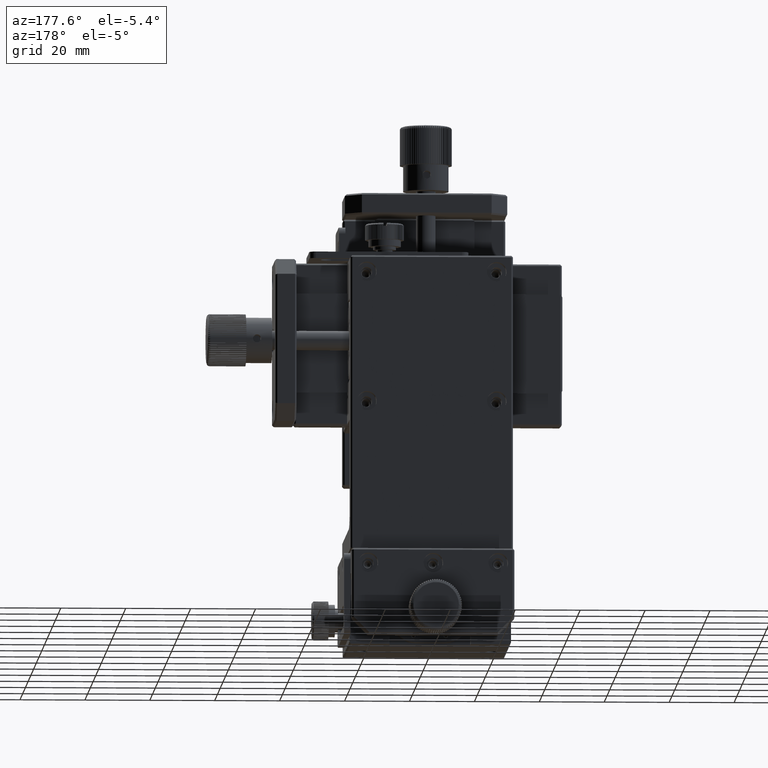
[diagram: clean part render]
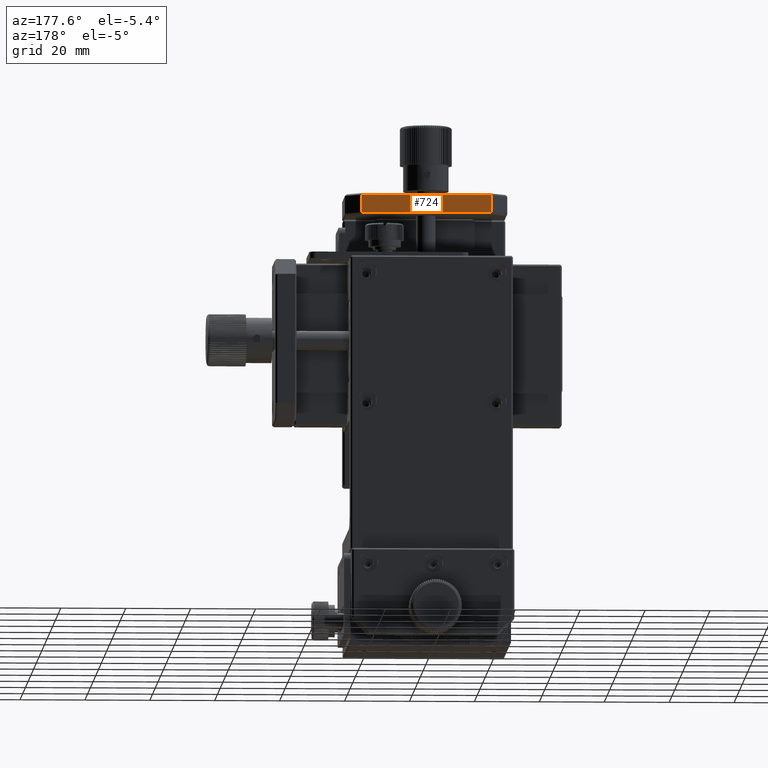
[diagram: same view with one face highlighted and labeled with its STEP entity id]
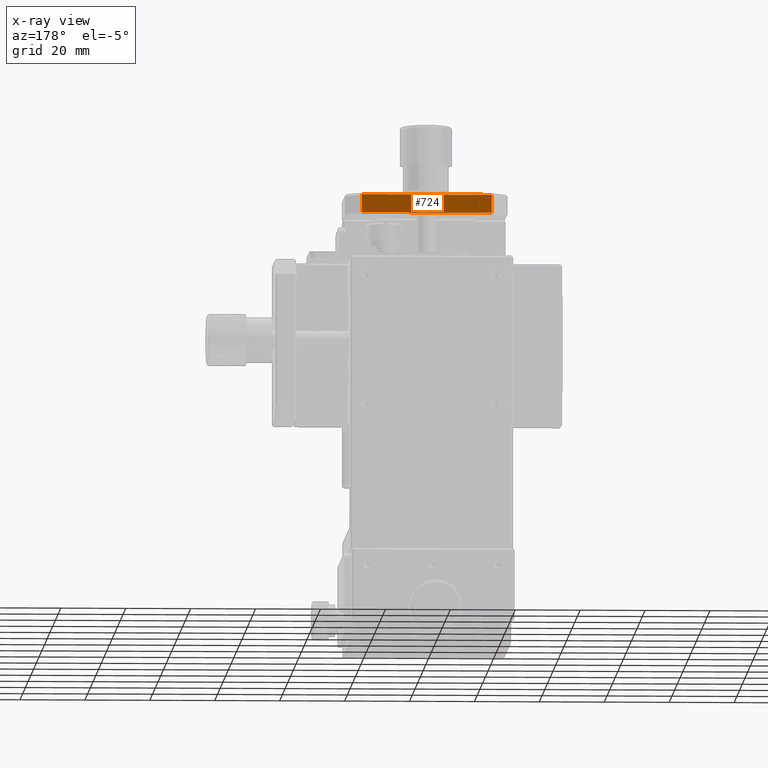
[diagram: x-ray of the same camera — body ghosted, the highlighted face saturated]
A machine part, auxiliary view. The second image highlights one B-rep face of the part: STEP entity #724.
The next image is the same camera in x-ray: the body ghosted, the highlighted face saturated — about 0% of this face is hidden behind the body in this view.
In plain terms, the highlighted planar face has unit normal (0, -1, 0).
Its self-contained STEP definition (entity closure, byte-faithful):
#150 = VECTOR ( 'NONE', #29880, 1000.000000000000000 ) ;
#724 = ADVANCED_FACE ( 'NONE', ( #6297 ), #44213, .F. ) ;
#2497 = EDGE_CURVE ( 'NONE', #59637, #41941, #15238, .T. ) ;
#5484 = DIRECTION ( 'NONE',  ( 0.000000000000000000, -0.000000000000000000, -1.000000000000000000 ) ) ;
#6297 = FACE_OUTER_BOUND ( 'NONE', #72793, .T. ) ;
#6728 = VECTOR ( 'NONE', #11344, 1000.000000000000000 ) ;
#7595 = VECTOR ( 'NONE', #22129, 1000.000000000000000 ) ;
#8424 = LINE ( 'NONE', #77688, #12824 ) ;
#11344 = DIRECTION ( 'NONE',  ( -0.000000000000000000, 0.000000000000000000, 1.000000000000000000 ) ) ;
#12568 = CARTESIAN_POINT ( 'NONE',  ( 20.00000000000000000, 26.99999999999999645, 88.50000000000000000 ) ) ;
#12824 = VECTOR ( 'NONE', #71966, 1000.000000000000000 ) ;
#15238 = LINE ( 'NONE', #27844, #7595 ) ;
#15496 = ORIENTED_EDGE ( 'NONE', *, *, #2497, .F. ) ;
#19331 = DIRECTION ( 'NONE',  ( 0.000000000000000000, -1.000000000000000000, 0.000000000000000000 ) ) ;
#22129 = DIRECTION ( 'NONE',  ( 1.000000000000000000, -0.000000000000000000, 0.000000000000000000 ) ) ;
#25439 = CARTESIAN_POINT ( 'NONE',  ( 20.00000000000000000, 27.00000000000000000, 89.00000000000000000 ) ) ;
#27844 = CARTESIAN_POINT ( 'NONE',  ( 20.00000000000000000, 27.00000000000000000, 83.00000000000000000 ) ) ;
#29880 = DIRECTION ( 'NONE',  ( -1.000000000000000000, -0.000000000000000000, -0.000000000000000000 ) ) ;
#37759 = ORIENTED_EDGE ( 'NONE', *, *, #65721, .T. ) ;
#41941 = VERTEX_POINT ( 'NONE', #66826 ) ;
#42143 = CARTESIAN_POINT ( 'NONE',  ( 20.00000000000000000, 27.00000000000000000, 88.50000000000000000 ) ) ;
#44213 = PLANE ( 'NONE',  #56498 ) ;
#45759 = CARTESIAN_POINT ( 'NONE',  ( -20.00000000000000355, 26.99999999999999645, 88.50000000000000000 ) ) ;
#47243 = CARTESIAN_POINT ( 'NONE',  ( -20.00000000000000000, 27.00000000000000000, 89.00000000000000000 ) ) ;
#51364 = EDGE_CURVE ( 'NONE', #57109, #60229, #54349, .T. ) ;
#54349 = LINE ( 'NONE', #42143, #150 ) ;
#55838 = EDGE_CURVE ( 'NONE', #59637, #60229, #72482, .T. ) ;
#56498 = AXIS2_PLACEMENT_3D ( 'NONE', #25439, #19331, #5484 ) ;
#57109 = VERTEX_POINT ( 'NONE', #12568 ) ;
#59637 = VERTEX_POINT ( 'NONE', #67990 ) ;
#60229 = VERTEX_POINT ( 'NONE', #45759 ) ;
#60521 = ORIENTED_EDGE ( 'NONE', *, *, #51364, .F. ) ;
#65721 = EDGE_CURVE ( 'NONE', #57109, #41941, #8424, .T. ) ;
#66826 = CARTESIAN_POINT ( 'NONE',  ( 20.00000000000000000, 27.00000000000000000, 83.00000000000000000 ) ) ;
#67990 = CARTESIAN_POINT ( 'NONE',  ( -20.00000000000000355, 27.00000000000000355, 83.00000000000000000 ) ) ;
#68004 = ORIENTED_EDGE ( 'NONE', *, *, #55838, .T. ) ;
#71966 = DIRECTION ( 'NONE',  ( -0.000000000000000000, -0.000000000000000000, -1.000000000000000000 ) ) ;
#72482 = LINE ( 'NONE', #47243, #6728 ) ;
#72793 = EDGE_LOOP ( 'NONE', ( #60521, #37759, #15496, #68004 ) ) ;
#77688 = CARTESIAN_POINT ( 'NONE',  ( 20.00000000000000000, 27.00000000000000000, 89.00000000000000000 ) ) ;